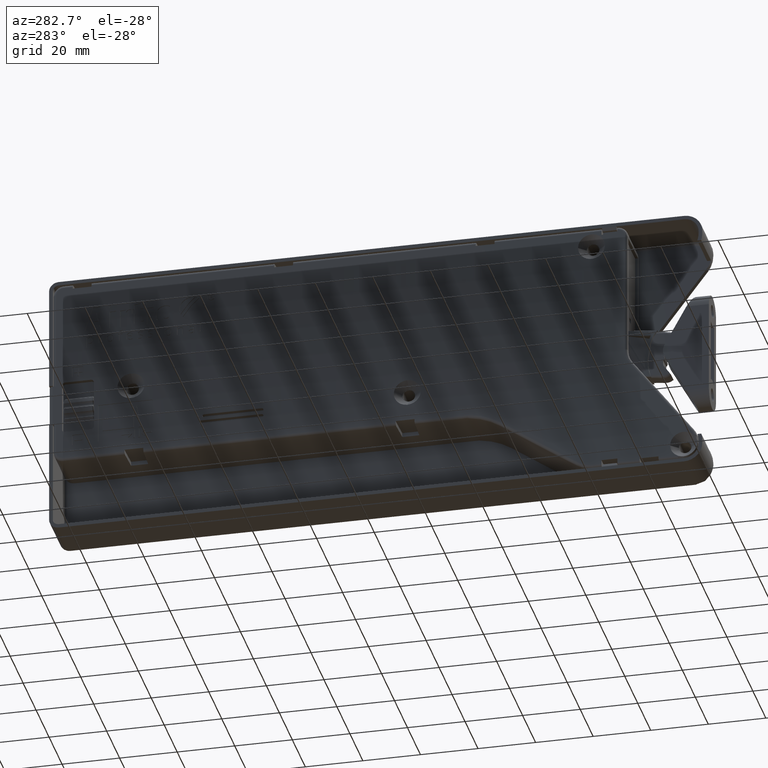
[diagram: clean part render]
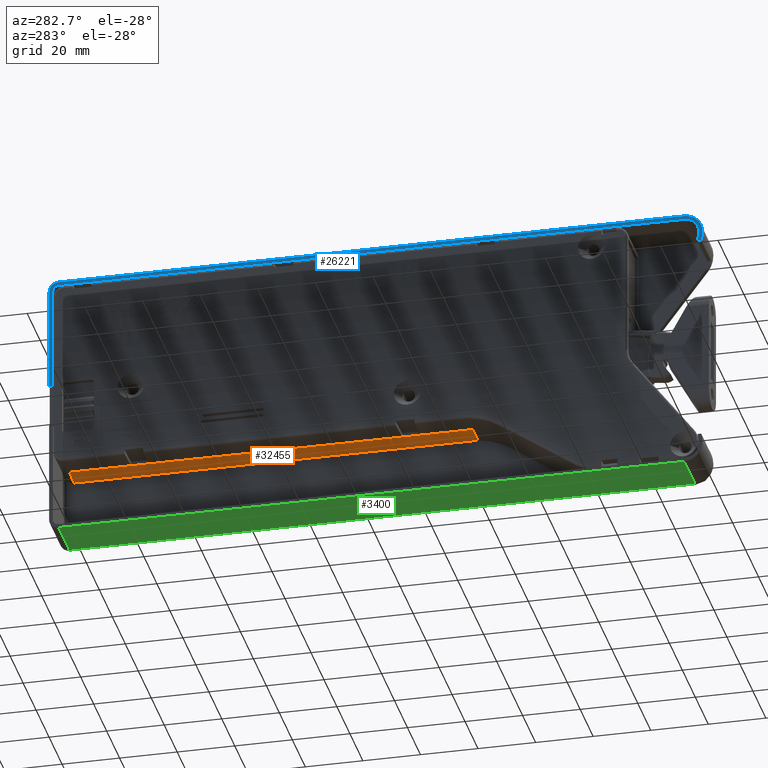
[diagram: same view with three faces highlighted in distinct colors, each labeled with its STEP entity id]
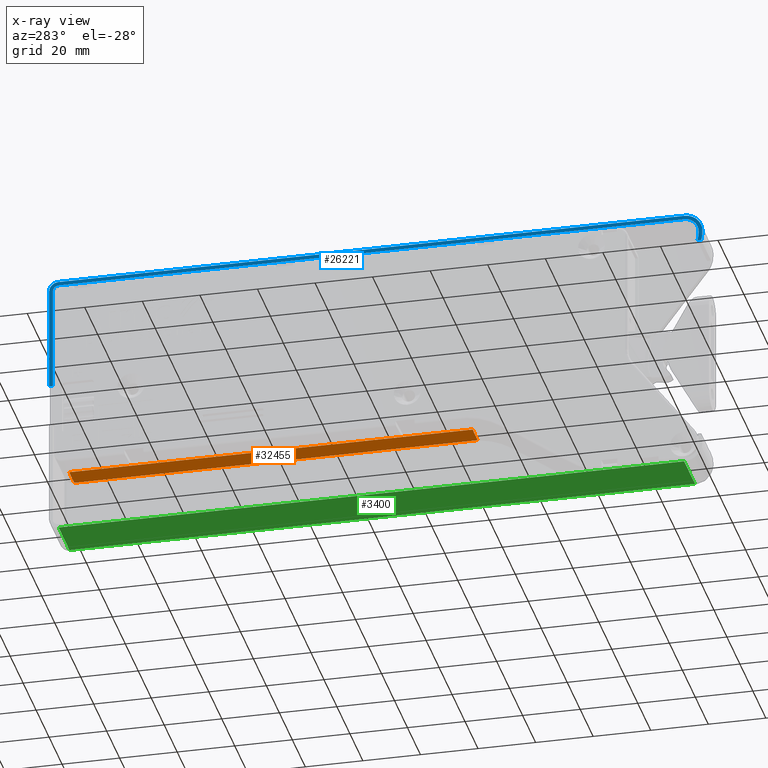
[diagram: x-ray of the same camera — body ghosted, the three highlighted faces saturated]
A machine part, auxiliary view with three faces highlighted in distinct colors.
The next image is the same camera in x-ray (body ghosted, the three faces saturated) — at least one of them is partly hidden behind the body in this view.
Their STEP definitions:

[orange] entity #32455 — the highlighted planar face has unit normal (-0, -0, 1).
#512 = AXIS2_PLACEMENT_3D ( 'NONE', #16485, #44974, #11004 ) ;
#5284 = VERTEX_POINT ( 'NONE', #24719 ) ;
#6841 = DIRECTION ( 'NONE',  ( -1.000000000000000000, -1.259842924428156200E-016, 0.0000000000000000000 ) ) ;
#6917 = ORIENTED_EDGE ( 'NONE', *, *, #21464, .F. ) ;
#10021 = CARTESIAN_POINT ( 'NONE',  ( 118.4799999999999500, 13.64071818913741300, 4.800000000016652300 ) ) ;
#10280 = ORIENTED_EDGE ( 'NONE', *, *, #71395, .F. ) ;
#11004 = DIRECTION ( 'NONE',  ( -1.000000000000000000, -1.259842924428156200E-016, 0.0000000000000000000 ) ) ;
#11386 = CARTESIAN_POINT ( 'NONE',  ( 118.4799117432560300, 13.64068391532755200, -5.199999999983353000 ) ) ;
#11756 = CARTESIAN_POINT ( 'NONE',  ( 118.4799999999999500, 13.64071818913741500, 2.700000000016650900 ) ) ;
#13418 = VERTEX_POINT ( 'NONE', #41726 ) ;
#15382 = CARTESIAN_POINT ( 'NONE',  ( -21.68402299277653000, 13.64071818913739900, -5.199999999983345100 ) ) ;
#15434 = VERTEX_POINT ( 'NONE', #15382 ) ;
#15767 = DIRECTION ( 'NONE',  ( 1.440474240527105100E-048, -7.125940794232772700E-033, -1.000000000000000000 ) ) ;
#16485 = CARTESIAN_POINT ( 'NONE',  ( 54.24439129388644400, 13.64071818913740600, 2.200000000016650400 ) ) ;
#18023 = CARTESIAN_POINT ( 'NONE',  ( 54.24439129388644400, 13.64071818913740600, -5.199999999983351300 ) ) ;
#18399 = DIRECTION ( 'NONE',  ( -1.000000000000000000, -1.259842924428156200E-016, 0.0000000000000000000 ) ) ;
#19418 = VECTOR ( 'NONE', #6841, 1000.000000000000000 ) ;
#21185 = EDGE_LOOP ( 'NONE', ( #62055, #67622, #47599, #68206, #10280, #67090, #6917, #46514 ) ) ;
#21464 = EDGE_CURVE ( 'NONE', #28408, #13418, #64648, .T. ) ;
#21941 = VERTEX_POINT ( 'NONE', #11756 ) ;
#22066 = LINE ( 'NONE', #32988, #61966 ) ;
#23697 = DIRECTION ( 'NONE',  ( -1.000000000000000000, -1.259842924428156200E-016, 0.0000000000000000000 ) ) ;
#23851 = CARTESIAN_POINT ( 'NONE',  ( 91.02946276568290800, 13.64068391532754800, -5.199999999983353900 ) ) ;
#24719 = CARTESIAN_POINT ( 'NONE',  ( -21.68402299277652300, 13.64071818913739900, 2.700000000016650900 ) ) ;
#25134 = EDGE_CURVE ( 'NONE', #52083, #49859, #69728, .T. ) ;
#25296 = CARTESIAN_POINT ( 'NONE',  ( 3.346052326730869700E-015, 13.64071818913739900, 2.700000000016650900 ) ) ;
#27849 = PLANE ( 'NONE',  #512 ) ;
#27955 = VERTEX_POINT ( 'NONE', #23851 ) ;
#28408 = VERTEX_POINT ( 'NONE', #11386 ) ;
#29232 = LINE ( 'NONE', #40939, #57619 ) ;
#29586 = EDGE_CURVE ( 'NONE', #5284, #21941, #71447, .T. ) ;
#29602 = CARTESIAN_POINT ( 'NONE',  ( -3.186375213868366500, 13.64068391532751600, -5.199999999983346800 ) ) ;
#29810 = EDGE_CURVE ( 'NONE', #49859, #15434, #60768, .T. ) ;
#32455 = ADVANCED_FACE ( 'NONE', ( #35676 ), #27849, .F. ) ;
#32988 = CARTESIAN_POINT ( 'NONE',  ( 54.24439129388644400, 13.64071818913740600, -5.199999999983363700 ) ) ;
#34040 = LINE ( 'NONE', #34104, #62444 ) ;
#34104 = CARTESIAN_POINT ( 'NONE',  ( -21.68402299277653000, 13.64071818913739900, 2.200000000016650400 ) ) ;
#35122 = CARTESIAN_POINT ( 'NONE',  ( 54.24439129388644400, 13.64071818913740600, -5.199999999983352200 ) ) ;
#35676 = FACE_OUTER_BOUND ( 'NONE', #21185, .T. ) ;
#36536 = EDGE_CURVE ( 'NONE', #21941, #28408, #65840, .T. ) ;
#38891 = CARTESIAN_POINT ( 'NONE',  ( 54.24439129388644400, 13.64071818913740600, -5.199999999983349500 ) ) ;
#39552 = VECTOR ( 'NONE', #23697, 1000.000000000000000 ) ;
#40939 = CARTESIAN_POINT ( 'NONE',  ( 54.24439129388644400, 13.64071818913740600, -5.199999999983361900 ) ) ;
#41238 = EDGE_CURVE ( 'NONE', #13418, #27955, #22066, .T. ) ;
#41284 = VECTOR ( 'NONE', #70655, 1000.000000000000000 ) ;
#41726 = CARTESIAN_POINT ( 'NONE',  ( 96.95739938127636000, 13.64068391532755200, -5.199999999983351300 ) ) ;
#44586 = DIRECTION ( 'NONE',  ( -1.000000000000000000, -1.259842924428156200E-016, 0.0000000000000000000 ) ) ;
#44974 = DIRECTION ( 'NONE',  ( -1.259842924428156200E-016, 1.000000000000000000, -7.125940794232772700E-033 ) ) ;
#45693 = VECTOR ( 'NONE', #44586, 1000.000000000000000 ) ;
#46514 = ORIENTED_EDGE ( 'NONE', *, *, #36536, .F. ) ;
#47599 = ORIENTED_EDGE ( 'NONE', *, *, #29810, .F. ) ;
#49859 = VERTEX_POINT ( 'NONE', #29602 ) ;
#52083 = VERTEX_POINT ( 'NONE', #66990 ) ;
#56949 = DIRECTION ( 'NONE',  ( -8.977566089508114000E-049, 7.125940794232772700E-033, 1.000000000000000000 ) ) ;
#57619 = VECTOR ( 'NONE', #18399, 1000.000000000000000 ) ;
#60768 = LINE ( 'NONE', #38891, #45693 ) ;
#61966 = VECTOR ( 'NONE', #67450, 1000.000000000000000 ) ;
#62055 = ORIENTED_EDGE ( 'NONE', *, *, #29586, .F. ) ;
#62444 = VECTOR ( 'NONE', #56949, 1000.000000000000000 ) ;
#64648 = LINE ( 'NONE', #35122, #19418 ) ;
#65840 = LINE ( 'NONE', #10021, #69422 ) ;
#66990 = CARTESIAN_POINT ( 'NONE',  ( 2.741561401725065100, 13.64068391532754800, -5.199999999983347700 ) ) ;
#67090 = ORIENTED_EDGE ( 'NONE', *, *, #41238, .F. ) ;
#67450 = DIRECTION ( 'NONE',  ( -1.000000000000000000, -1.259842924428156200E-016, 0.0000000000000000000 ) ) ;
#67573 = EDGE_CURVE ( 'NONE', #15434, #5284, #34040, .T. ) ;
#67622 = ORIENTED_EDGE ( 'NONE', *, *, #67573, .F. ) ;
#68206 = ORIENTED_EDGE ( 'NONE', *, *, #25134, .F. ) ;
#69422 = VECTOR ( 'NONE', #15767, 1000.000000000000000 ) ;
#69728 = LINE ( 'NONE', #18023, #39552 ) ;
#70655 = DIRECTION ( 'NONE',  ( 1.000000000000000000, 1.259842924428156200E-016, 0.0000000000000000000 ) ) ;
#71395 = EDGE_CURVE ( 'NONE', #27955, #52083, #29232, .T. ) ;
#71447 = LINE ( 'NONE', #25296, #41284 ) ;

[blue] entity #26221 — the highlighted planar face has unit normal (1, -0, 0).
#403 = EDGE_CURVE ( 'NONE', #54374, #21962, #69316, .T. ) ;
#413 = EDGE_CURVE ( 'NONE', #23777, #15397, #37368, .T. ) ;
#999 = CARTESIAN_POINT ( 'NONE',  ( -97.23110527874116800, 82.23789999530295300, -13.97668824094110500 ) ) ;
#1238 = CARTESIAN_POINT ( 'NONE',  ( -98.86859119588773100, 82.03521133781646300, -13.97668824094110300 ) ) ;
#1485 = CARTESIAN_POINT ( 'NONE',  ( -103.2081192344996900, 77.95101965426140100, -13.97668824094110300 ) ) ;
#1580 = FACE_OUTER_BOUND ( 'NONE', #46400, .T. ) ;
#2629 = ORIENTED_EDGE ( 'NONE', *, *, #403, .T. ) ;
#2829 = CARTESIAN_POINT ( 'NONE',  ( -97.23110527874116800, 80.93789999530295600, -13.97668824094110500 ) ) ;
#2935 = DIRECTION ( 'NONE',  ( -1.000000000000000000, -5.054110297746401300E-013, 0.0000000000000000000 ) ) ;
#3201 = CARTESIAN_POINT ( 'NONE',  ( -100.1658953625729400, 80.93789999530295600, -13.97668824094110500 ) ) ;
#3242 = ORIENTED_EDGE ( 'NONE', *, *, #35760, .F. ) ;
#3974 = CARTESIAN_POINT ( 'NONE',  ( -102.2411053322094300, 74.99305075344716400, -13.97668824094110500 ) ) ;
#4508 = CARTESIAN_POINT ( 'NONE',  ( -103.5411053322094400, 75.91289994167461000, -13.97668824094110500 ) ) ;
#5510 = CARTESIAN_POINT ( 'NONE',  ( -102.2411053322094300, 74.99305075344716400, -13.97668824094110500 ) ) ;
#5596 = LINE ( 'NONE', #25480, #64159 ) ;
#5760 = DIRECTION ( 'NONE',  ( -1.000000000000000000, 0.0000000000000000000, 0.0000000000000000000 ) ) ;
#6104 = DIRECTION ( 'NONE',  ( -0.0000000000000000000, -0.0000000000000000000, -1.000000000000000000 ) ) ;
#6271 = CARTESIAN_POINT ( 'NONE',  ( 120.0864778059239800, 78.93789999530295600, -13.97668824094110300 ) ) ;
#6901 = CARTESIAN_POINT ( 'NONE',  ( -100.0317117191125400, 81.59581555233263800, -13.97668824094110300 ) ) ;
#7157 = CARTESIAN_POINT ( 'NONE',  ( -103.3792816575487400, 77.35114694881775700, -13.97668824094110300 ) ) ;
#8088 = VERTEX_POINT ( 'NONE', #34593 ) ;
#8870 = CARTESIAN_POINT ( 'NONE',  ( -97.23110527874116800, 80.93789999530295600, -13.97668824094110500 ) ) ;
#9440 = CARTESIAN_POINT ( 'NONE',  ( -101.7889624998991700, 72.28537827412603200, -13.97668824094110600 ) ) ;
#9693 = VERTEX_POINT ( 'NONE', #25824 ) ;
#9750 = AXIS2_PLACEMENT_3D ( 'NONE', #28259, #67931, #33957 ) ;
#11031 = VECTOR ( 'NONE', #61279, 1000.000000000000000 ) ;
#11910 = VECTOR ( 'NONE', #31087, 1000.000000000000000 ) ;
#11963 = DIRECTION ( 'NONE',  ( 1.000000000000000000, 0.0000000000000000000, 0.0000000000000000000 ) ) ;
#12659 = CARTESIAN_POINT ( 'NONE',  ( -100.9102800375134300, 81.05565318821453500, -13.97668824094110300 ) ) ;
#12901 = CARTESIAN_POINT ( 'NONE',  ( -103.5411053322094500, 76.32989494519388500, -13.97668824094110300 ) ) ;
#13787 = EDGE_CURVE ( 'NONE', #27441, #72683, #41490, .T. ) ;
#14552 = VECTOR ( 'NONE', #5760, 1000.000000000000000 ) ;
#14562 = CARTESIAN_POINT ( 'NONE',  ( 122.0864778059239800, 42.62999999765451500, -13.97668824094110500 ) ) ;
#14631 = CARTESIAN_POINT ( 'NONE',  ( -102.2411053322094100, 78.85647682216456600, -13.97668824094110500 ) ) ;
#15397 = VERTEX_POINT ( 'NONE', #3974 ) ;
#16652 = ORIENTED_EDGE ( 'NONE', *, *, #62608, .T. ) ;
#16794 = ORIENTED_EDGE ( 'NONE', *, *, #413, .T. ) ;
#18360 = CARTESIAN_POINT ( 'NONE',  ( -101.3976498829652100, 80.66746187886404600, -13.97668824094110300 ) ) ;
#19561 = CIRCLE ( 'NONE', #27082, 8.333565355878757700 ) ;
#20053 = EDGE_CURVE ( 'NONE', #59427, #15397, #19561, .T. ) ;
#20241 = DIRECTION ( 'NONE',  ( 1.000000000000000000, 0.0000000000000000000, 0.0000000000000000000 ) ) ;
#20554 = ORIENTED_EDGE ( 'NONE', *, *, #44820, .F. ) ;
#21621 = LINE ( 'NONE', #38359, #66842 ) ;
#21962 = VERTEX_POINT ( 'NONE', #51417 ) ;
#22069 = CIRCLE ( 'NONE', #47434, 3.299999999999997200 ) ;
#22304 = VECTOR ( 'NONE', #22386, 1000.000000000000000 ) ;
#22386 = DIRECTION ( 'NONE',  ( -1.000000000000000000, -0.0000000000000000000, -0.0000000000000000000 ) ) ;
#22997 = VECTOR ( 'NONE', #51622, 1000.000000000000000 ) ;
#23572 = B_SPLINE_CURVE_WITH_KNOTS ( 'NONE', 3,
 ( #999, #23802, #35190, #1238, #40901, #6901, #46601, #12659, #52299, #18360, #58019, #24056, #63702, #29732, #69415, #35450, #1485, #41151, #7157, #46835, #12901, #52543 ),
 .UNSPECIFIED., .F., .F.,
 ( 4, 2, 2, 2, 2, 2, 2, 2, 2, 2, 4 ),
 ( 0.0000000000000000000, 0.001233790870759386500, 0.002467581741518773000, 0.003701372612278159700, 0.004318268047657852600, 0.004935163483037545900, 0.006168954353796961300, 0.007402745224556377500, 0.008019640659936105500, 0.008636536095315831800, 0.009870326966075326100 ),
 .UNSPECIFIED. ) ;
#23706 = LINE ( 'NONE', #14562, #52069 ) ;
#23777 = VERTEX_POINT ( 'NONE', #36529 ) ;
#23802 = CARTESIAN_POINT ( 'NONE',  ( -97.64812758813117500, 82.23789999530295300, -13.97668824094110300 ) ) ;
#24056 = CARTESIAN_POINT ( 'NONE',  ( -101.9853911457395600, 80.09192928764368000, -13.97668824094110300 ) ) ;
#24061 = ORIENTED_EDGE ( 'NONE', *, *, #20053, .F. ) ;
#24130 = VERTEX_POINT ( 'NONE', #64752 ) ;
#25017 = PLANE ( 'NONE',  #28315 ) ;
#25146 = CARTESIAN_POINT ( 'NONE',  ( -103.5411053322094000, 74.99305080707540600, -13.97668824094110500 ) ) ;
#25257 = DIRECTION ( 'NONE',  ( 0.0000000000000000000, 0.0000000000000000000, 1.000000000000000000 ) ) ;
#25480 = CARTESIAN_POINT ( 'NONE',  ( -103.2487413875155100, 72.28537827412530700, -13.97668824094110500 ) ) ;
#25824 = CARTESIAN_POINT ( 'NONE',  ( 123.3864778059239600, 78.93789999530295600, -13.97668824094110500 ) ) ;
#26221 = ADVANCED_FACE ( 'NONE', ( #1580 ), #25017, .F. ) ;
#26725 = EDGE_CURVE ( 'NONE', #24130, #61010, #23706, .T. ) ;
#27082 = AXIS2_PLACEMENT_3D ( 'NONE', #29324, #68989, #35021 ) ;
#27441 = VERTEX_POINT ( 'NONE', #25146 ) ;
#27716 = CARTESIAN_POINT ( 'NONE',  ( 120.0864778059239800, 80.93789999530295600, -13.97668824094110500 ) ) ;
#28259 = CARTESIAN_POINT ( 'NONE',  ( -93.90753997633063900, 74.99305080707553400, -13.97668824094110500 ) ) ;
#28315 = AXIS2_PLACEMENT_3D ( 'NONE', #41873, #25257, #64912 ) ;
#29324 = CARTESIAN_POINT ( 'NONE',  ( -93.90753997633063900, 74.99305080707553400, -13.97668824094110500 ) ) ;
#29658 = CIRCLE ( 'NONE', #33168, 2.000000000000001800 ) ;
#29732 = CARTESIAN_POINT ( 'NONE',  ( -102.7093764363872900, 79.07911316921936900, -13.97668824094110300 ) ) ;
#30558 = EDGE_CURVE ( 'NONE', #61662, #54374, #42061, .T. ) ;
#30867 = EDGE_CURVE ( 'NONE', #50603, #8088, #73091, .T. ) ;
#31087 = DIRECTION ( 'NONE',  ( -1.000000000000000000, -0.0000000000000000000, -0.0000000000000000000 ) ) ;
#33168 = AXIS2_PLACEMENT_3D ( 'NONE', #6271, #45926, #11963 ) ;
#33394 = ORIENTED_EDGE ( 'NONE', *, *, #73325, .T. ) ;
#33756 = CARTESIAN_POINT ( 'NONE',  ( -68.70802688559520300, 80.93789999530297100, -13.97668824094110500 ) ) ;
#33957 = DIRECTION ( 'NONE',  ( 1.000000000000000000, 0.0000000000000000000, 0.0000000000000000000 ) ) ;
#34593 = CARTESIAN_POINT ( 'NONE',  ( -97.23110527874116800, 82.23789999530295300, -13.97668824094110500 ) ) ;
#34862 = ORIENTED_EDGE ( 'NONE', *, *, #35910, .T. ) ;
#35021 = DIRECTION ( 'NONE',  ( -1.000000000000000000, 0.0000000000000000000, 0.0000000000000000000 ) ) ;
#35190 = CARTESIAN_POINT ( 'NONE',  ( -98.05895420901141800, 82.19686536999825000, -13.97668824094110300 ) ) ;
#35450 = CARTESIAN_POINT ( 'NONE',  ( -103.1385942647216300, 78.14525942647566100, -13.97668824094110300 ) ) ;
#35458 = ORIENTED_EDGE ( 'NONE', *, *, #30867, .F. ) ;
#35760 = EDGE_CURVE ( 'NONE', #8088, #70410, #23572, .T. ) ;
#35910 = EDGE_CURVE ( 'NONE', #59427, #72683, #5596, .T. ) ;
#36235 = VERTEX_POINT ( 'NONE', #57953 ) ;
#36297 = LINE ( 'NONE', #45914, #22997 ) ;
#36529 = CARTESIAN_POINT ( 'NONE',  ( -102.2411053322094300, 75.91289994167461000, -13.97668824094110500 ) ) ;
#36832 =( BOUNDED_CURVE ( )  B_SPLINE_CURVE ( 3, ( #8870, #3201, #14631, #54270 ),
 .UNSPECIFIED., .F., .F. ) 
 B_SPLINE_CURVE_WITH_KNOTS ( ( 4, 4 ),
 ( 0.0000000000000000000, 1.000000000000000000 ),
 .UNSPECIFIED. ) 
 CURVE ( )  GEOMETRIC_REPRESENTATION_ITEM ( )  RATIONAL_B_SPLINE_CURVE ( ( 1.000000000000000000, 0.8047378541243649400, 0.8047378541243649400, 1.000000000000000000 ) ) 
 REPRESENTATION_ITEM ( '' )  );
#37368 = LINE ( 'NONE', #5510, #65733 ) ;
#38359 = CARTESIAN_POINT ( 'NONE',  ( -97.23110527874116800, 80.93789999530295600, -13.97668824094110500 ) ) ;
#39743 = CARTESIAN_POINT ( 'NONE',  ( 120.0824778059239700, 82.23789999530295300, -13.97668824094110500 ) ) ;
#40080 = CARTESIAN_POINT ( 'NONE',  ( 120.0864778059239600, 78.93789999530295600, -13.97668824094110500 ) ) ;
#40901 = CARTESIAN_POINT ( 'NONE',  ( -99.27055662711428900, 81.91265799434117400, -13.97668824094110300 ) ) ;
#41151 = CARTESIAN_POINT ( 'NONE',  ( -103.3285211629594900, 77.55400491249487500, -13.97668824094110300 ) ) ;
#41490 = CIRCLE ( 'NONE', #9750, 9.633565355878767300 ) ;
#41873 = CARTESIAN_POINT ( 'NONE',  ( -83.66204827157582700, 31.73423180026243500, -13.97668824094110500 ) ) ;
#42061 = LINE ( 'NONE', #2829, #11910 ) ;
#43140 = LINE ( 'NONE', #65252, #69775 ) ;
#44820 = EDGE_CURVE ( 'NONE', #70410, #27441, #52721, .T. ) ;
#45764 = DIRECTION ( 'NONE',  ( 1.000000000000000000, 0.0000000000000000000, 0.0000000000000000000 ) ) ;
#45914 = CARTESIAN_POINT ( 'NONE',  ( 122.0864778059239600, 78.92789999530295100, -13.97668824094110500 ) ) ;
#45926 = DIRECTION ( 'NONE',  ( 0.0000000000000000000, 0.0000000000000000000, 1.000000000000000000 ) ) ;
#46400 = EDGE_LOOP ( 'NONE', ( #61873, #47035, #16652, #67007, #51679, #2629, #49803, #47405, #16794, #24061, #34862, #57676, #20554, #3242, #35458, #33394 ) ) ;
#46601 = CARTESIAN_POINT ( 'NONE',  ( -100.3941603676216900, 81.40154495441838400, -13.97668824094110300 ) ) ;
#46835 = CARTESIAN_POINT ( 'NONE',  ( -103.5003636432077100, 76.74154357186552000, -13.97668824094110300 ) ) ;
#47035 = ORIENTED_EDGE ( 'NONE', *, *, #26725, .F. ) ;
#47405 = ORIENTED_EDGE ( 'NONE', *, *, #50589, .T. ) ;
#47434 = AXIS2_PLACEMENT_3D ( 'NONE', #40080, #6104, #45764 ) ;
#49803 = ORIENTED_EDGE ( 'NONE', *, *, #54243, .T. ) ;
#50589 = EDGE_CURVE ( 'NONE', #56554, #23777, #36832, .T. ) ;
#50603 = VERTEX_POINT ( 'NONE', #65666 ) ;
#51417 = CARTESIAN_POINT ( 'NONE',  ( -73.70802688559520300, 80.93789999530297100, -13.97668824094110500 ) ) ;
#51622 = DIRECTION ( 'NONE',  ( -1.587466908707574600E-016, 1.000000000000000000, 0.0000000000000000000 ) ) ;
#51679 = ORIENTED_EDGE ( 'NONE', *, *, #30558, .T. ) ;
#52069 = VECTOR ( 'NONE', #20241, 1000.000000000000000 ) ;
#52299 = CARTESIAN_POINT ( 'NONE',  ( -101.0782215949991100, 80.93065173912582100, -13.97668824094110300 ) ) ;
#52543 = CARTESIAN_POINT ( 'NONE',  ( -103.5411053322094400, 75.91289994167461000, -13.97668824094110500 ) ) ;
#52721 = LINE ( 'NONE', #4508, #11031 ) ;
#54243 = EDGE_CURVE ( 'NONE', #21962, #56554, #21621, .T. ) ;
#54270 = CARTESIAN_POINT ( 'NONE',  ( -102.2411053322094300, 75.91289994167461000, -13.97668824094110500 ) ) ;
#54374 = VERTEX_POINT ( 'NONE', #73312 ) ;
#55216 = DIRECTION ( 'NONE',  ( -1.000000000000000000, -0.0000000000000000000, -0.0000000000000000000 ) ) ;
#56554 = VERTEX_POINT ( 'NONE', #59823 ) ;
#57676 = ORIENTED_EDGE ( 'NONE', *, *, #13787, .F. ) ;
#57948 = EDGE_CURVE ( 'NONE', #36235, #61662, #29658, .T. ) ;
#57953 = CARTESIAN_POINT ( 'NONE',  ( 122.0864778059239600, 78.93789999530295600, -13.97668824094110500 ) ) ;
#58019 = CARTESIAN_POINT ( 'NONE',  ( -101.5499981790979400, 80.52878389387953500, -13.97668824094110300 ) ) ;
#59427 = VERTEX_POINT ( 'NONE', #9440 ) ;
#59823 = CARTESIAN_POINT ( 'NONE',  ( -97.23110527874116800, 80.93789999530295600, -13.97668824094110500 ) ) ;
#61010 = VERTEX_POINT ( 'NONE', #72954 ) ;
#61279 = DIRECTION ( 'NONE',  ( 3.017405199573610100E-014, -1.000000000000000000, 0.0000000000000000000 ) ) ;
#61662 = VERTEX_POINT ( 'NONE', #27716 ) ;
#61873 = ORIENTED_EDGE ( 'NONE', *, *, #65501, .F. ) ;
#62608 = EDGE_CURVE ( 'NONE', #24130, #36235, #36297, .T. ) ;
#63702 = CARTESIAN_POINT ( 'NONE',  ( -102.2477125784534200, 79.77205499879204400, -13.97668824094110300 ) ) ;
#64159 = VECTOR ( 'NONE', #2935, 1000.000000000000000 ) ;
#64380 = CARTESIAN_POINT ( 'NONE',  ( -103.5411053322094400, 75.91289994167461000, -13.97668824094110500 ) ) ;
#64752 = CARTESIAN_POINT ( 'NONE',  ( 122.0864778059239800, 42.62999999765451500, -13.97668824094110500 ) ) ;
#64912 = DIRECTION ( 'NONE',  ( 1.000000000000000000, 0.0000000000000000000, 0.0000000000000000000 ) ) ;
#65252 = CARTESIAN_POINT ( 'NONE',  ( 123.3864778059239700, -8.667899999993917200, -13.97668824094110500 ) ) ;
#65501 = EDGE_CURVE ( 'NONE', #61010, #9693, #43140, .T. ) ;
#65666 = CARTESIAN_POINT ( 'NONE',  ( 120.0864778059239600, 82.23789999530295300, -13.97668824094110500 ) ) ;
#65733 = VECTOR ( 'NONE', #73438, 1000.000000000000000 ) ;
#66842 = VECTOR ( 'NONE', #55216, 1000.000000000000000 ) ;
#67007 = ORIENTED_EDGE ( 'NONE', *, *, #57948, .T. ) ;
#67931 = DIRECTION ( 'NONE',  ( 0.0000000000000000000, 0.0000000000000000000, 1.000000000000000000 ) ) ;
#68167 = CARTESIAN_POINT ( 'NONE',  ( -103.1527598720548400, 72.28537827412535000, -13.97668824094110500 ) ) ;
#68989 = DIRECTION ( 'NONE',  ( 0.0000000000000000000, 0.0000000000000000000, -1.000000000000000000 ) ) ;
#69316 = LINE ( 'NONE', #33756, #22304 ) ;
#69415 = CARTESIAN_POINT ( 'NONE',  ( -102.9027334506279200, 78.71548998061868500, -13.97668824094110300 ) ) ;
#69775 = VECTOR ( 'NONE', #70993, 1000.000000000000000 ) ;
#70410 = VERTEX_POINT ( 'NONE', #64380 ) ;
#70993 = DIRECTION ( 'NONE',  ( -1.584298312083407500E-016, 1.000000000000000000, 0.0000000000000000000 ) ) ;
#72683 = VERTEX_POINT ( 'NONE', #68167 ) ;
#72954 = CARTESIAN_POINT ( 'NONE',  ( 123.3864778059239700, 42.62999999765451500, -13.97668824094110500 ) ) ;
#73091 = LINE ( 'NONE', #39743, #14552 ) ;
#73312 = CARTESIAN_POINT ( 'NONE',  ( -68.70802688559520300, 80.93789999530297100, -13.97668824094110500 ) ) ;
#73325 = EDGE_CURVE ( 'NONE', #50603, #9693, #22069, .T. ) ;
#73438 = DIRECTION ( 'NONE',  ( -0.0000000000000000000, -1.000000000000000000, -0.0000000000000000000 ) ) ;

[green] entity #3400 — the highlighted planar face has unit normal (0, -0, -1).
#783 = DIRECTION ( 'NONE',  ( 1.000000000000000000, 0.0000000000000000000, 0.0000000000000000000 ) ) ;
#3400 = ADVANCED_FACE ( 'NONE', ( #33446 ), #32438, .T. ) ;
#3458 = ORIENTED_EDGE ( 'NONE', *, *, #26378, .T. ) ;
#6438 = CARTESIAN_POINT ( 'NONE',  ( -97.23110533220942400, -11.97789999999391800, -13.97668824094110500 ) ) ;
#7735 = VECTOR ( 'NONE', #783, 1000.000000000000000 ) ;
#10141 = EDGE_CURVE ( 'NONE', #15552, #41921, #37424, .T. ) ;
#11322 = LINE ( 'NONE', #23582, #7735 ) ;
#12426 = DIRECTION ( 'NONE',  ( 0.0000000000000000000, 0.0000000000000000000, 1.000000000000000000 ) ) ;
#15552 = VERTEX_POINT ( 'NONE', #6438 ) ;
#20057 = VECTOR ( 'NONE', #25850, 1000.000000000000000 ) ;
#20242 = ORIENTED_EDGE ( 'NONE', *, *, #36892, .T. ) ;
#21062 = CARTESIAN_POINT ( 'NONE',  ( -97.23110533220942400, -11.97789999999391800, -14.17671324094111200 ) ) ;
#23374 = ORIENTED_EDGE ( 'NONE', *, *, #10141, .F. ) ;
#23582 = CARTESIAN_POINT ( 'NONE',  ( -97.23110533220942400, -11.97789999999391800, -13.97668824094110500 ) ) ;
#25850 = DIRECTION ( 'NONE',  ( -1.000000000000000000, 0.0000000000000000000, 0.0000000000000000000 ) ) ;
#26378 = EDGE_CURVE ( 'NONE', #15552, #43136, #11322, .T. ) ;
#30778 = EDGE_LOOP ( 'NONE', ( #20242, #43699, #23374, #3458 ) ) ;
#32438 = PLANE ( 'NONE',  #33093 ) ;
#33093 = AXIS2_PLACEMENT_3D ( 'NONE', #21062, #72115, #38162 ) ;
#33446 = FACE_OUTER_BOUND ( 'NONE', #30778, .T. ) ;
#35635 = CARTESIAN_POINT ( 'NONE',  ( -97.23110533220942400, -11.97789999999391800, 2.713311759058888200 ) ) ;
#36892 = EDGE_CURVE ( 'NONE', #43136, #65544, #53386, .T. ) ;
#37264 = CARTESIAN_POINT ( 'NONE',  ( 120.0864778059239800, -11.97789999999391800, 2.713311759058888200 ) ) ;
#37424 = LINE ( 'NONE', #46373, #67575 ) ;
#38162 = DIRECTION ( 'NONE',  ( 0.0000000000000000000, 0.0000000000000000000, -1.000000000000000000 ) ) ;
#41738 = CARTESIAN_POINT ( 'NONE',  ( 120.0864778059239800, -11.97789999999391800, -14.17671324094111200 ) ) ;
#41921 = VERTEX_POINT ( 'NONE', #35635 ) ;
#43136 = VERTEX_POINT ( 'NONE', #44529 ) ;
#43699 = ORIENTED_EDGE ( 'NONE', *, *, #56560, .T. ) ;
#44529 = CARTESIAN_POINT ( 'NONE',  ( 120.0864778059239800, -11.97789999999391800, -13.97668824094110500 ) ) ;
#46373 = CARTESIAN_POINT ( 'NONE',  ( -97.23110533220942400, -11.97789999999391800, -14.17671324094111200 ) ) ;
#47402 = DIRECTION ( 'NONE',  ( 0.0000000000000000000, 0.0000000000000000000, 1.000000000000000000 ) ) ;
#53386 = LINE ( 'NONE', #41738, #55172 ) ;
#54135 = CARTESIAN_POINT ( 'NONE',  ( -97.23110533220942400, -11.97789999999391800, 2.713311759058889500 ) ) ;
#55172 = VECTOR ( 'NONE', #47402, 1000.000000000000000 ) ;
#56560 = EDGE_CURVE ( 'NONE', #65544, #41921, #65277, .T. ) ;
#65277 = LINE ( 'NONE', #54135, #20057 ) ;
#65544 = VERTEX_POINT ( 'NONE', #37264 ) ;
#67575 = VECTOR ( 'NONE', #12426, 1000.000000000000000 ) ;
#72115 = DIRECTION ( 'NONE',  ( 0.0000000000000000000, -1.000000000000000000, 0.0000000000000000000 ) ) ;